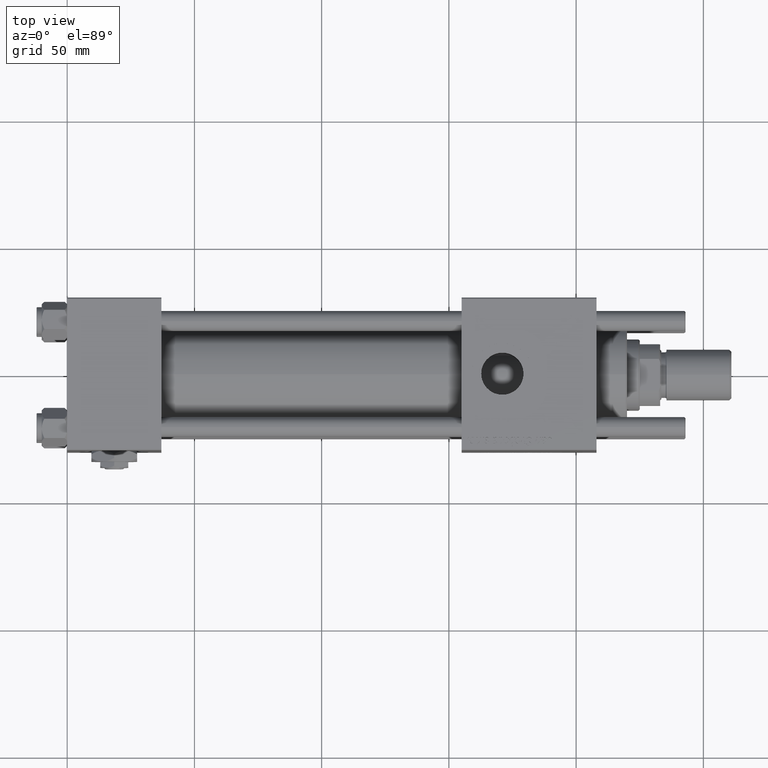
[diagram: clean part render]
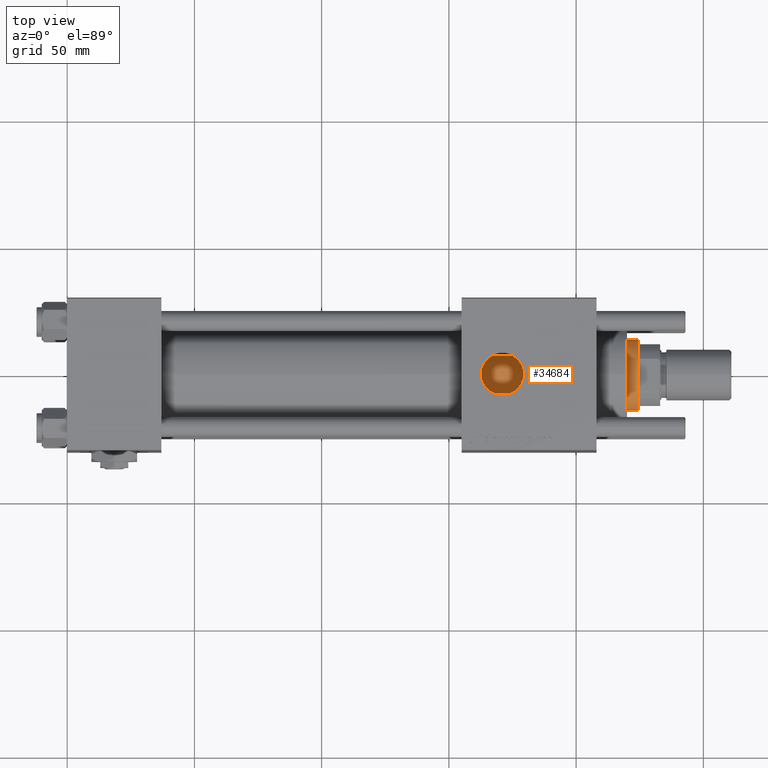
[diagram: same view with one face highlighted and labeled with its STEP entity id]
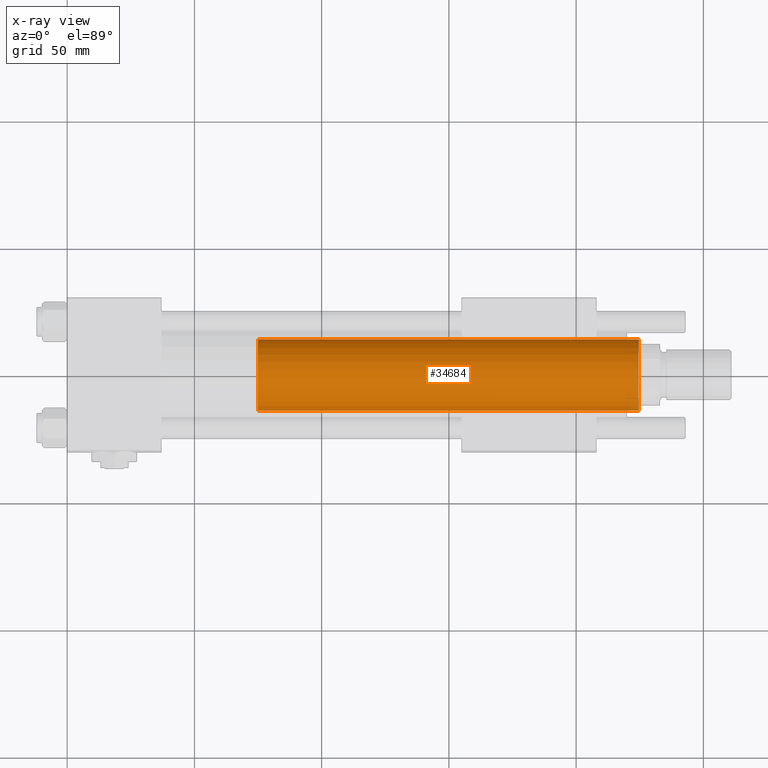
[diagram: x-ray of the same camera — body ghosted, the highlighted face saturated]
A machine part, top view. The second image highlights one B-rep face of the part: STEP entity #34684.
The next image is the same camera in x-ray: the body ghosted, the highlighted face saturated — about 0% of this face is hidden behind the body in this view.
In plain terms, the highlighted cylindrical surface (edge-blend (fillet) strip) has radius 14 mm, axis along (-1, 0, 0).
Its self-contained STEP definition (entity closure, byte-faithful):
#62 = AXIS2_PLACEMENT_3D ( 'NONE', #1608, #14477, #6380 ) ;
#1608 = CARTESIAN_POINT ( 'NONE',  ( 0.000000000000000000, 0.000000000000000000, 187.5000000000000284 ) ) ;
#3235 = CARTESIAN_POINT ( 'NONE',  ( -14.00000000000000178, 0.000000000000000000, 188.0000000000000000 ) ) ;
#4317 = ORIENTED_EDGE ( 'NONE', *, *, #9699, .T. ) ;
#6380 = DIRECTION ( 'NONE',  ( 1.000000000000000000, 0.000000000000000000, 0.000000000000000000 ) ) ;
#9699 = EDGE_CURVE ( 'NONE', #44545, #35490, #39368, .T. ) ;
#14477 = DIRECTION ( 'NONE',  ( 0.000000000000000000, 0.000000000000000000, -1.000000000000000000 ) ) ;
#15145 = AXIS2_PLACEMENT_3D ( 'NONE', #28249, #36007, #27666 ) ;
#19918 = DIRECTION ( 'NONE',  ( -0.000000000000000000, -0.000000000000000000, -1.000000000000000000 ) ) ;
#20113 = CIRCLE ( 'NONE', #62, 14.00000000000000178 ) ;
#23875 = ORIENTED_EDGE ( 'NONE', *, *, #57739, .T. ) ;
#25484 = CARTESIAN_POINT ( 'NONE',  ( -14.00000000000000178, 0.000000000000000000, 38.00000000000000000 ) ) ;
#25773 = DIRECTION ( 'NONE',  ( -0.000000000000000000, -0.000000000000000000, -1.000000000000000000 ) ) ;
#27623 = CARTESIAN_POINT ( 'NONE',  ( -14.00000000000000178, 0.000000000000000000, 187.5000000000000284 ) ) ;
#27666 = DIRECTION ( 'NONE',  ( 1.000000000000000000, 0.000000000000000000, 0.000000000000000000 ) ) ;
#27691 = CARTESIAN_POINT ( 'NONE',  ( 14.00000000000000178, 1.714505518806294835E-15, 188.0000000000000000 ) ) ;
#28249 = CARTESIAN_POINT ( 'NONE',  ( 0.000000000000000000, 0.000000000000000000, 38.00000000000000000 ) ) ;
#29561 = VECTOR ( 'NONE', #19918, 1000.000000000000000 ) ;
#29945 = FACE_OUTER_BOUND ( 'NONE', #36484, .T. ) ;
#34684 = ADVANCED_FACE ( 'NONE', ( #29945 ), #39486, .T. ) ;
#35127 = CIRCLE ( 'NONE', #15145, 14.00000000000000178 ) ;
#35490 = VERTEX_POINT ( 'NONE', #25484 ) ;
#36007 = DIRECTION ( 'NONE',  ( 0.000000000000000000, 0.000000000000000000, 1.000000000000000000 ) ) ;
#36484 = EDGE_LOOP ( 'NONE', ( #55030, #55525, #4317, #23875 ) ) ;
#36907 = LINE ( 'NONE', #27691, #29561 ) ;
#39368 = LINE ( 'NONE', #3235, #58012 ) ;
#39486 = CYLINDRICAL_SURFACE ( 'NONE', #48317, 14.00000000000000178 ) ;
#41153 = VERTEX_POINT ( 'NONE', #43574 ) ;
#42567 = EDGE_CURVE ( 'NONE', #41153, #47001, #36907, .T. ) ;
#43574 = CARTESIAN_POINT ( 'NONE',  ( 14.00000000000000178, 1.714505518806294835E-15, 187.5000000000000284 ) ) ;
#44545 = VERTEX_POINT ( 'NONE', #27623 ) ;
#47001 = VERTEX_POINT ( 'NONE', #52425 ) ;
#48129 = DIRECTION ( 'NONE',  ( -1.000000000000000000, 0.000000000000000000, 0.000000000000000000 ) ) ;
#48317 = AXIS2_PLACEMENT_3D ( 'NONE', #52909, #25773, #48129 ) ;
#48999 = EDGE_CURVE ( 'NONE', #41153, #44545, #20113, .T. ) ;
#52425 = CARTESIAN_POINT ( 'NONE',  ( 14.00000000000000178, 1.714505518806294835E-15, 38.00000000000000000 ) ) ;
#52909 = CARTESIAN_POINT ( 'NONE',  ( 0.000000000000000000, 0.000000000000000000, 188.0000000000000000 ) ) ;
#55030 = ORIENTED_EDGE ( 'NONE', *, *, #42567, .F. ) ;
#55525 = ORIENTED_EDGE ( 'NONE', *, *, #48999, .T. ) ;
#57739 = EDGE_CURVE ( 'NONE', #35490, #47001, #35127, .T. ) ;
#57852 = DIRECTION ( 'NONE',  ( -0.000000000000000000, -0.000000000000000000, -1.000000000000000000 ) ) ;
#58012 = VECTOR ( 'NONE', #57852, 1000.000000000000000 ) ;